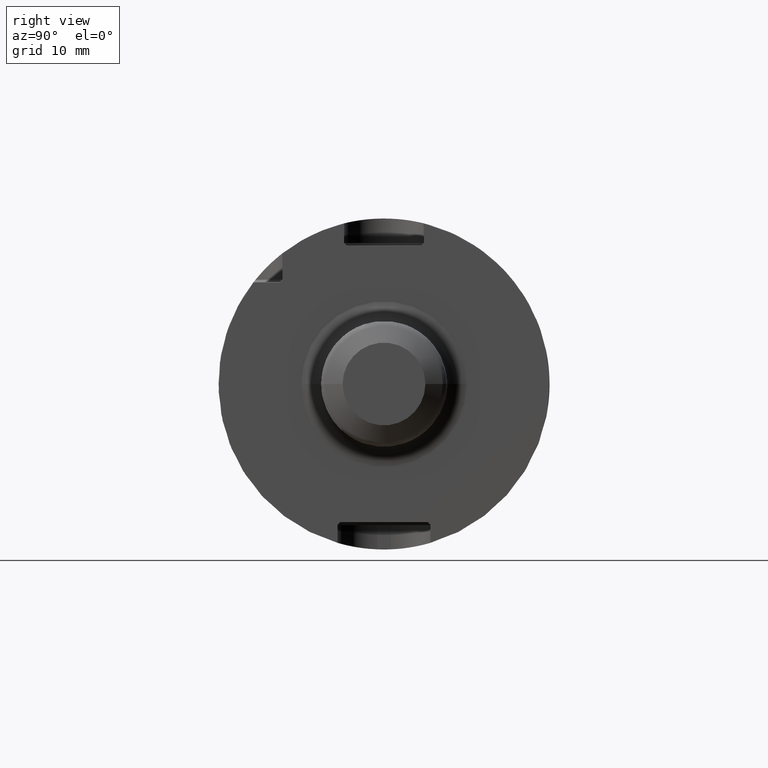
[diagram: clean part render]
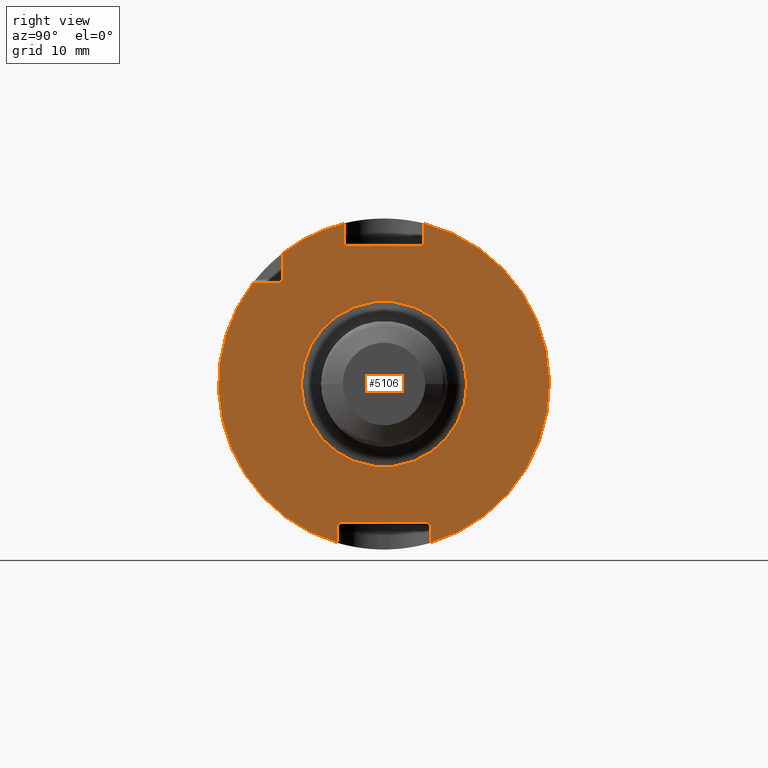
[diagram: same view with one face highlighted and labeled with its STEP entity id]
A machine part, right view. The second image highlights one B-rep face of the part: STEP entity #5106.
In plain terms, the highlighted planar face has unit normal (1, 0, 0).
Its self-contained STEP definition (entity closure, byte-faithful):
#1010=CARTESIAN_POINT('',(2.595E1,0.E0,0.E0));
#1011=DIRECTION('',(1.E0,0.E0,0.E0));
#1012=DIRECTION('',(0.E0,-2.407E-1,9.705995621264E-1));
#1013=AXIS2_PLACEMENT_3D('',#1010,#1011,#1012);
#1019=CARTESIAN_POINT('',(2.595E1,0.E0,0.E0));
#1020=DIRECTION('',(1.E0,0.E0,0.E0));
#1021=DIRECTION('',(0.E0,-7.893060243024E-1,6.14E-1));
#1022=AXIS2_PLACEMENT_3D('',#1019,#1020,#1021);
#1046=CARTESIAN_POINT('',(2.595E1,0.E0,0.E0));
#1047=DIRECTION('',(1.E0,0.E0,0.E0));
#1048=DIRECTION('',(0.E0,2.807E-1,-9.597955563556E-1));
#1049=AXIS2_PLACEMENT_3D('',#1046,#1047,#1048);
#1380=DIRECTION('',(0.E0,7.071067811865E-1,-7.071067811865E-1));
#1381=VECTOR('',#1380,5.656854249492E-1);
#1382=CARTESIAN_POINT('',(2.595E1,6.6175E0,-2.09E1));
#1383=LINE('',#1382,#1381);
#1495=DIRECTION('',(0.E0,-7.071067811865E-1,-7.071067811865E-1));
#1496=VECTOR('',#1495,5.656854249492E-1);
#1497=CARTESIAN_POINT('',(2.595E1,6.0175E0,2.13E1));
#1498=LINE('',#1497,#1496);
#1617=DIRECTION('',(0.E0,7.071067811866E-1,7.071067811865E-1));
#1618=VECTOR('',#1617,5.656854249492E-1);
#1619=CARTESIAN_POINT('',(2.595E1,-7.0175E0,-2.13E1));
#1620=LINE('',#1619,#1618);
#1689=DIRECTION('',(0.E0,1.E0,0.E0));
#1690=VECTOR('',#1689,3.982650607559E0);
#1691=CARTESIAN_POINT('',(2.595E1,-1.973265060756E1,1.535E1));
#1692=LINE('',#1691,#1690);
#1693=DIRECTION('',(0.E0,0.E0,-1.E0));
#1694=VECTOR('',#1693,3.982650607559E0);
#1695=CARTESIAN_POINT('',(2.595E1,-1.535E1,1.973265060756E1));
#1696=LINE('',#1695,#1694);
#1697=DIRECTION('',(0.E0,0.E0,-1.E0));
#1698=VECTOR('',#1697,2.964989053161E0);
#1699=CARTESIAN_POINT('',(2.595E1,-6.0175E0,2.426498905316E1));
#1700=LINE('',#1699,#1698);
#1701=DIRECTION('',(0.E0,1.E0,0.E0));
#1702=VECTOR('',#1701,1.1235E1);
#1703=CARTESIAN_POINT('',(2.595E1,-5.6175E0,2.09E1));
#1704=LINE('',#1703,#1702);
#1705=DIRECTION('',(0.E0,0.E0,-1.E0));
#1706=VECTOR('',#1705,2.964989053161E0);
#1707=CARTESIAN_POINT('',(2.595E1,6.0175E0,2.426498905316E1));
#1708=LINE('',#1707,#1706);
#1709=DIRECTION('',(0.E0,0.E0,1.E0));
#1710=VECTOR('',#1709,2.694888908891E0);
#1711=CARTESIAN_POINT('',(2.595E1,7.0175E0,-2.399488890889E1));
#1712=LINE('',#1711,#1710);
#1713=DIRECTION('',(0.E0,-1.E0,0.E0));
#1714=VECTOR('',#1713,1.3235E1);
#1715=CARTESIAN_POINT('',(2.595E1,6.6175E0,-2.09E1));
#1716=LINE('',#1715,#1714);
#1717=DIRECTION('',(0.E0,0.E0,1.E0));
#1718=VECTOR('',#1717,2.694888908891E0);
#1719=CARTESIAN_POINT('',(2.595E1,-7.0175E0,-2.399488890889E1));
#1720=LINE('',#1719,#1718);
#1721=CARTESIAN_POINT('',(2.595E1,0.E0,0.E0));
#1722=DIRECTION('',(1.E0,0.E0,0.E0));
#1723=DIRECTION('',(0.E0,-1.E0,0.E0));
#1724=AXIS2_PLACEMENT_3D('',#1721,#1722,#1723);
#1726=CARTESIAN_POINT('',(2.595E1,0.E0,0.E0));
#1727=DIRECTION('',(1.E0,0.E0,0.E0));
#1728=DIRECTION('',(0.E0,1.E0,0.E0));
#1729=AXIS2_PLACEMENT_3D('',#1726,#1727,#1728);
#1854=DIRECTION('',(0.E0,-7.071067811865E-1,-7.071067811865E-1));
#1855=VECTOR('',#1854,5.656854249492E-1);
#1856=CARTESIAN_POINT('',(2.595E1,-1.535E1,1.575E1));
#1857=LINE('',#1856,#1855);
#1875=DIRECTION('',(0.E0,-7.071067811865E-1,7.071067811865E-1));
#1876=VECTOR('',#1875,5.656854249492E-1);
#1877=CARTESIAN_POINT('',(2.595E1,-5.6175E0,2.09E1));
#1878=LINE('',#1877,#1876);
#3090=CARTESIAN_POINT('',(2.595E1,-5.6175E0,2.09E1));
#3091=CARTESIAN_POINT('',(2.595E1,-6.0175E0,2.13E1));
#3092=VERTEX_POINT('',#3090);
#3093=VERTEX_POINT('',#3091);
#3094=CARTESIAN_POINT('',(2.595E1,6.0175E0,2.13E1));
#3095=CARTESIAN_POINT('',(2.595E1,5.6175E0,2.09E1));
#3096=VERTEX_POINT('',#3094);
#3097=VERTEX_POINT('',#3095);
#3122=CARTESIAN_POINT('',(2.595E1,6.6175E0,-2.09E1));
#3123=CARTESIAN_POINT('',(2.595E1,7.0175E0,-2.13E1));
#3124=VERTEX_POINT('',#3122);
#3125=VERTEX_POINT('',#3123);
#3126=CARTESIAN_POINT('',(2.595E1,-7.0175E0,-2.13E1));
#3127=CARTESIAN_POINT('',(2.595E1,-6.6175E0,-2.09E1));
#3128=VERTEX_POINT('',#3126);
#3129=VERTEX_POINT('',#3127);
#3140=CARTESIAN_POINT('',(2.595E1,-1.535E1,1.575E1));
#3141=CARTESIAN_POINT('',(2.595E1,-1.575E1,1.535E1));
#3142=VERTEX_POINT('',#3140);
#3143=VERTEX_POINT('',#3141);
#3168=CARTESIAN_POINT('',(2.595E1,-1.973265060756E1,1.535E1));
#3169=VERTEX_POINT('',#3168);
#3170=CARTESIAN_POINT('',(2.595E1,-1.535E1,1.973265060756E1));
#3171=VERTEX_POINT('',#3170);
#3208=CARTESIAN_POINT('',(2.595E1,6.0175E0,2.426498905316E1));
#3209=VERTEX_POINT('',#3208);
#3210=CARTESIAN_POINT('',(2.595E1,-7.0175E0,-2.399488890889E1));
#3211=VERTEX_POINT('',#3210);
#3212=CARTESIAN_POINT('',(2.595E1,-6.0175E0,2.426498905316E1));
#3213=VERTEX_POINT('',#3212);
#3214=CARTESIAN_POINT('',(2.595E1,7.0175E0,-2.399488890889E1));
#3215=VERTEX_POINT('',#3214);
#3270=CARTESIAN_POINT('',(2.595E1,-1.25E1,0.E0));
#3271=CARTESIAN_POINT('',(2.595E1,1.25E1,0.E0));
#3272=VERTEX_POINT('',#3270);
#3273=VERTEX_POINT('',#3271);
#5073=CARTESIAN_POINT('',(2.595E1,0.E0,0.E0));
#5074=DIRECTION('',(1.E0,0.E0,0.E0));
#5075=DIRECTION('',(0.E0,-1.E0,0.E0));
#5076=AXIS2_PLACEMENT_3D('',#5073,#5074,#5075);
#5077=PLANE('',#5076);
#5079=ORIENTED_EDGE('',*,*,#5078,.T.);
#5081=ORIENTED_EDGE('',*,*,#5080,.F.);
#5083=ORIENTED_EDGE('',*,*,#5082,.F.);
#5084=ORIENTED_EDGE('',*,*,#4349,.F.);
#5085=ORIENTED_EDGE('',*,*,#4538,.T.);
#5087=ORIENTED_EDGE('',*,*,#5086,.F.);
#5088=ORIENTED_EDGE('',*,*,#4881,.T.);
#5089=ORIENTED_EDGE('',*,*,#4864,.F.);
#5090=ORIENTED_EDGE('',*,*,#4835,.F.);
#5091=ORIENTED_EDGE('',*,*,#4381,.F.);
#5092=ORIENTED_EDGE('',*,*,#4760,.T.);
#5093=ORIENTED_EDGE('',*,*,#4730,.F.);
#5094=ORIENTED_EDGE('',*,*,#4697,.T.);
#5095=ORIENTED_EDGE('',*,*,#4960,.F.);
#5096=ORIENTED_EDGE('',*,*,#5067,.F.);
#5097=ORIENTED_EDGE('',*,*,#4361,.F.);
#5098=EDGE_LOOP('',(#5079,#5081,#5083,#5084,#5085,#5087,#5088,#5089,#5090,#5091,
#5092,#5093,#5094,#5095,#5096,#5097));
#5099=FACE_OUTER_BOUND('',#5098,.F.);
#5101=ORIENTED_EDGE('',*,*,#5100,.T.);
#5103=ORIENTED_EDGE('',*,*,#5102,.T.);
#5104=EDGE_LOOP('',(#5101,#5103));
#5105=FACE_BOUND('',#5104,.F.);
#5106=ADVANCED_FACE('',(#5099,#5105),#5077,.T.);
#1014=CIRCLE('',#1013,2.5E1);
#1023=CIRCLE('',#1022,2.5E1);
#1050=CIRCLE('',#1049,2.5E1);
#1725=CIRCLE('',#1724,1.25E1);
#1730=CIRCLE('',#1729,1.25E1);
#4349=EDGE_CURVE('',#3213,#3171,#1014,.T.);
#4361=EDGE_CURVE('',#3169,#3211,#1023,.T.);
#4381=EDGE_CURVE('',#3215,#3209,#1050,.T.);
#4538=EDGE_CURVE('',#3213,#3093,#1700,.T.);
#4697=EDGE_CURVE('',#3124,#3129,#1716,.T.);
#4730=EDGE_CURVE('',#3124,#3125,#1383,.T.);
#4760=EDGE_CURVE('',#3215,#3125,#1712,.T.);
#4835=EDGE_CURVE('',#3209,#3096,#1708,.T.);
#4864=EDGE_CURVE('',#3096,#3097,#1498,.T.);
#4881=EDGE_CURVE('',#3092,#3097,#1704,.T.);
#4960=EDGE_CURVE('',#3128,#3129,#1620,.T.);
#5067=EDGE_CURVE('',#3211,#3128,#1720,.T.);
#5078=EDGE_CURVE('',#3169,#3143,#1692,.T.);
#5080=EDGE_CURVE('',#3142,#3143,#1857,.T.);
#5082=EDGE_CURVE('',#3171,#3142,#1696,.T.);
#5086=EDGE_CURVE('',#3092,#3093,#1878,.T.);
#5100=EDGE_CURVE('',#3272,#3273,#1725,.T.);
#5102=EDGE_CURVE('',#3273,#3272,#1730,.T.);